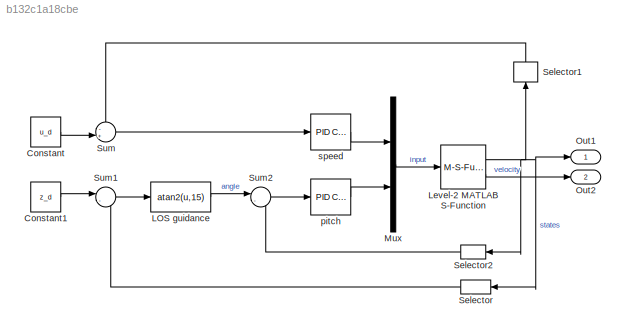
MODEL slx_b132c1a18cbe
KIND model
CONFIG AbsTol = auto
CONFIG EnableMultiTasking = off
CONFIG FixedStep = tStep
CONFIG MaxStep = auto
CONFIG MinStep = auto
CONFIG RelTol = 1e-3
CONFIG SampleTimeConstraint = Unconstrained
CONFIG Solver = ode4
CONFIG SolverName = ode4
CONFIG StartTime = 0.0
CONFIG StopTime = tEnd
BLOCK [Constant] Constant
  Value = u_d
BLOCK [Constant] Constant1
  Value = z_d
BLOCK [Fcn] LOS guidance
  Expr = atan2(u,15)
BLOCK [M-S-Function] Level-2 MATLAB S-Function
  FunctionName = auv_3dof
  Parameters = auv.propulsion,auv.actuators,auv.rigid_body,auv.X,auv.Z,auv.M,auv.Ainv,ics
  Ports = [1, 2]
BLOCK [Mux] Mux
  DisplayOption = bar
  Inputs = 2
  Ports = [2, 1]
BLOCK [Outport] Out1
  IconDisplay = Port number
BLOCK [Outport] Out2
  IconDisplay = Port number
  Port = 2
BLOCK [Selector] Selector
  IndexOptions = Index vector (dialog)
  Indices = [2]
  InputPortWidth = 8
  OutputSizes = 1
  Ports = [1, 1]
BLOCK [Selector] Selector1
  IndexOptions = Index vector (dialog)
  Indices = [4]
  InputPortWidth = 8
  OutputSizes = 1
  Ports = [1, 1]
BLOCK [Selector] Selector2
  IndexOptions = Index vector (dialog)
  Indices = [3]
  InputPortWidth = 8
  OutputSizes = 1
  Ports = [1, 1]
BLOCK [Sum] Sum
  IconShape = round
  InputSameDT = off
  Inputs = -+|
  OutDataTypeStr = Inherit: Inherit via internal rule
  Ports = [2, 1]
  SaturateOnIntegerOverflow = off
BLOCK [Sum] Sum1
  IconShape = round
  InputSameDT = off
  Inputs = |-+
  OutDataTypeStr = Inherit: Inherit via internal rule
  Ports = [2, 1]
  SaturateOnIntegerOverflow = off
BLOCK [Sum] Sum2
  IconShape = round
  InputSameDT = off
  Inputs = |-+
  OutDataTypeStr = Inherit: Inherit via internal rule
  Ports = [2, 1]
  SaturateOnIntegerOverflow = off
BLOCK [Reference] pitch  REF=simulink/Continuous/PID Controller
  Ports = [1, 1]
  SourceBlock = simulink/Continuous/PID Controller
  SourceProductBaseCode = SL
  SourceProductName = Simulink
  SourceType = PID 1dof
BLOCK [Reference] speed  REF=simulink/Continuous/PID Controller
  Ports = [1, 1]
  SourceBlock = simulink/Continuous/PID Controller
  SourceProductBaseCode = SL
  SourceProductName = Simulink
  SourceType = PID 1dof
LINE Constant1:1 -> Sum1:1
LINE Constant:1 -> Sum:2
LINE LOS guidance:1 -> Sum2:1
NET Level-2 MATLAB S-Function:1 -> Out1:1, Selector1:1, Selector2:1, Selector:1
LINE Level-2 MATLAB S-Function:2 -> Out2:1
LINE Mux:1 -> Level-2 MATLAB S-Function:1
LINE Selector1:1 -> Sum:1
LINE Selector2:1 -> Sum2:2
LINE Selector:1 -> Sum1:2
LINE Sum1:1 -> LOS guidance:1
LINE Sum2:1 -> pitch:1
LINE Sum:1 -> speed:1
LINE pitch:1 -> Mux:2
LINE speed:1 -> Mux:1
note: NET lines group one-source signal fan-out (src -> all destinations, sorted); 1:1 wires keep LINE
